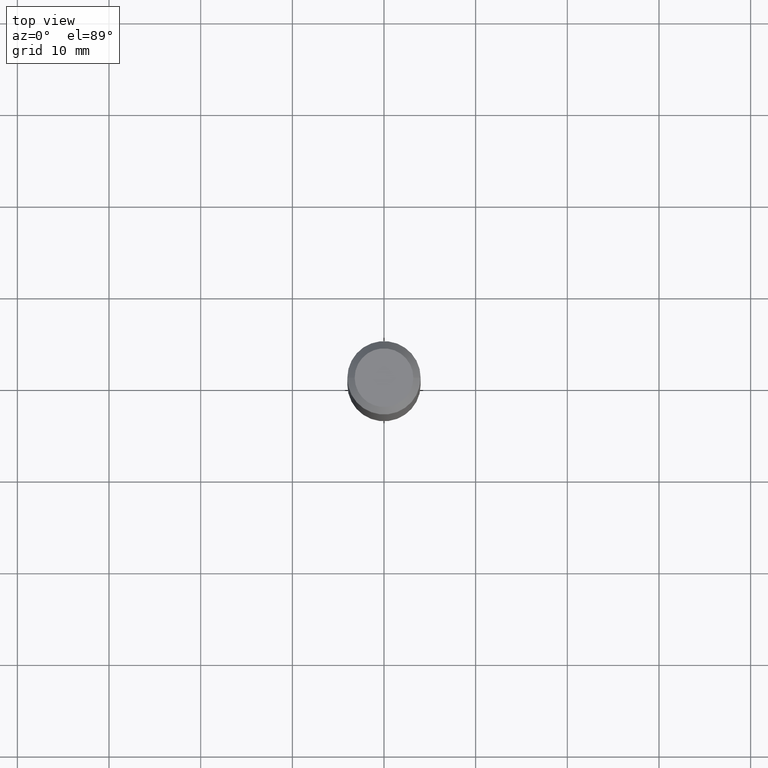
[diagram: clean part render]
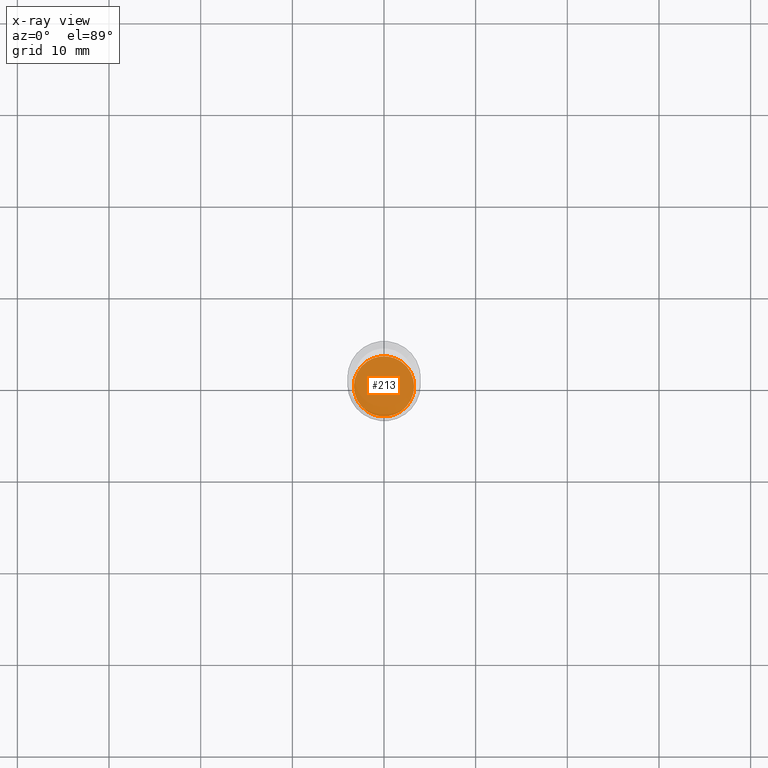
[diagram: x-ray — body ghosted, one internal face saturated and labeled with its STEP entity id]
A machine part, top view, then the same camera in x-ray: the body is ghosted and one INTERNAL B-rep face — a face not visible from any outside direction — is saturated and labeled: STEP entity #213.
In plain terms, the highlighted planar face has unit normal (-0, 0, 1).
Its self-contained STEP definition (entity closure, byte-faithful):
#34 = DIRECTION ( 'NONE',  ( 1.000000000000000000, -6.982962677686265922E-15, 4.876176775795935793E-29 ) ) ;
#49 = AXIS2_PLACEMENT_3D ( 'NONE', #377, #217, #34 ) ;
#60 = PLANE ( 'NONE',  #49 ) ;
#71 = ORIENTED_EDGE ( 'NONE', *, *, #265, .F. ) ;
#78 = AXIS2_PLACEMENT_3D ( 'NONE', #100, #253, #114 ) ;
#100 = CARTESIAN_POINT ( 'NONE',  ( 5.295173606032675561E-29, -7.560104542997063911E-15, -2.165299999999999780 ) ) ;
#105 = VERTEX_POINT ( 'NONE', #401 ) ;
#114 = DIRECTION ( 'NONE',  ( 1.000000000000000000, -6.982962677686265133E-15, 0.000000000000000000 ) ) ;
#118 = CARTESIAN_POINT ( 'NONE',  ( 5.295173606032675561E-29, -7.560104542997063911E-15, -2.165299999999999780 ) ) ;
#181 = CIRCLE ( 'NONE', #346, 0.1293999999999999873 ) ;
#213 = ADVANCED_FACE ( 'NONE', ( #229 ), #60, .F. ) ;
#217 = DIRECTION ( 'NONE',  ( -2.438088387897960049E-29, 3.491481338843145188E-15, 1.000000000000000000 ) ) ;
#229 = FACE_OUTER_BOUND ( 'NONE', #366, .T. ) ;
#237 = DIRECTION ( 'NONE',  ( -2.445468806185136597E-29, 3.491481338843145583E-15, 1.000000000000000000 ) ) ;
#253 = DIRECTION ( 'NONE',  ( -2.445468806185136597E-29, 3.491481338843145583E-15, 1.000000000000000000 ) ) ;
#265 = EDGE_CURVE ( 'NONE', #105, #349, #383, .T. ) ;
#346 = AXIS2_PLACEMENT_3D ( 'NONE', #118, #237, #418 ) ;
#349 = VERTEX_POINT ( 'NONE', #420 ) ;
#366 = EDGE_LOOP ( 'NONE', ( #71, #481 ) ) ;
#377 = CARTESIAN_POINT ( 'NONE',  ( 5.295173606032675561E-29, -7.560104542997063911E-15, -2.165299999999999780 ) ) ;
#383 = CIRCLE ( 'NONE', #78, 0.1293999999999999873 ) ;
#401 = CARTESIAN_POINT ( 'NONE',  ( 0.1293999999999999873, -8.463699913489665713E-15, -2.165299999999999780 ) ) ;
#418 = DIRECTION ( 'NONE',  ( 1.000000000000000000, -6.982962677686265133E-15, 0.000000000000000000 ) ) ;
#420 = CARTESIAN_POINT ( 'NONE',  ( -0.1293999999999999873, -6.638013015749382568E-15, -2.165299999999999780 ) ) ;
#421 = EDGE_CURVE ( 'NONE', #349, #105, #181, .T. ) ;
#481 = ORIENTED_EDGE ( 'NONE', *, *, #421, .F. ) ;